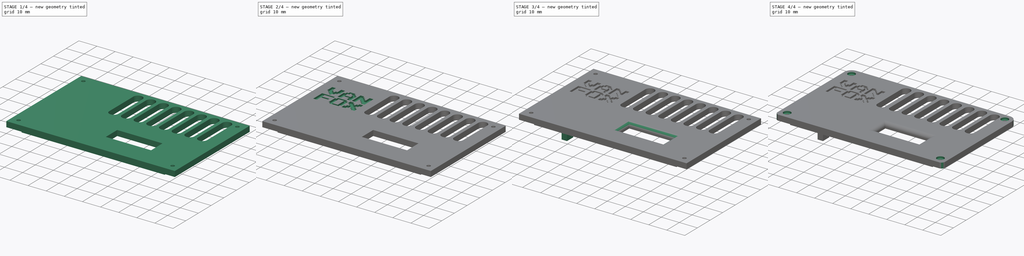
[diagram: build sequence overview — one tinted view per stage of 4, left to right]
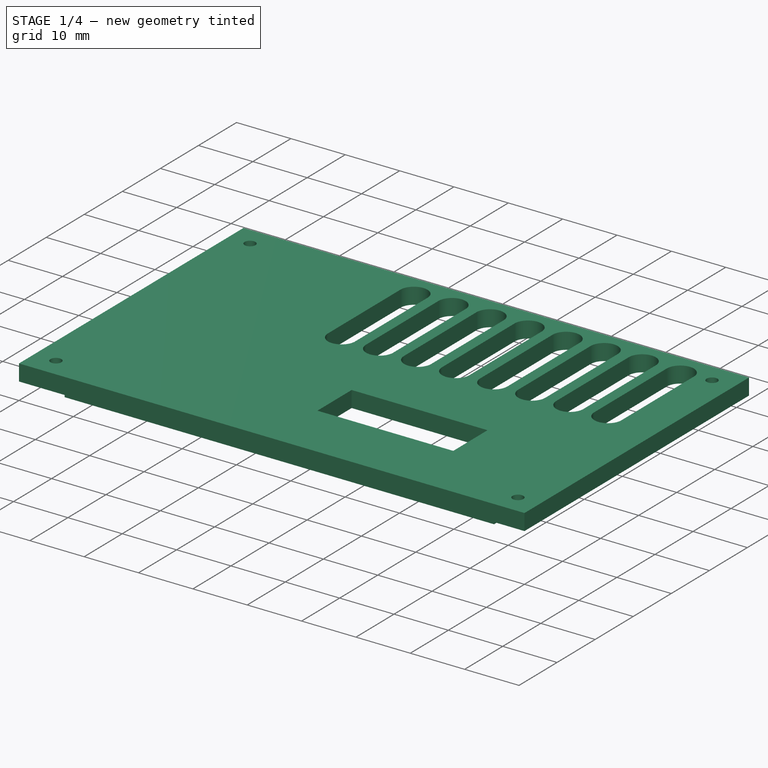
[diagram: stage 1 of 4 — iso view after this stage's code; geometry added in this stage tinted green]
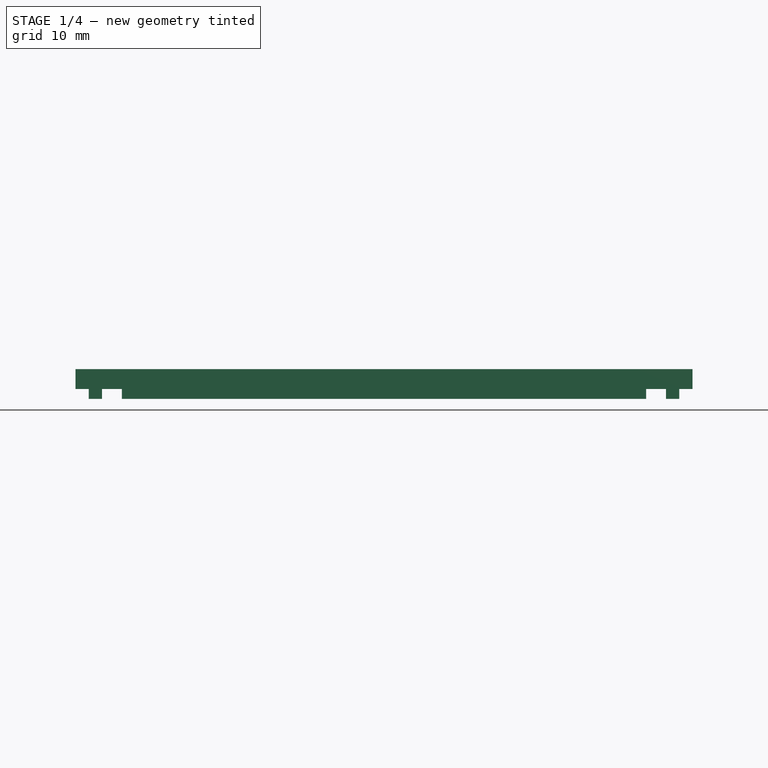
[diagram: stage 1 of 4 — front view after this stage's code; geometry added in this stage tinted green]
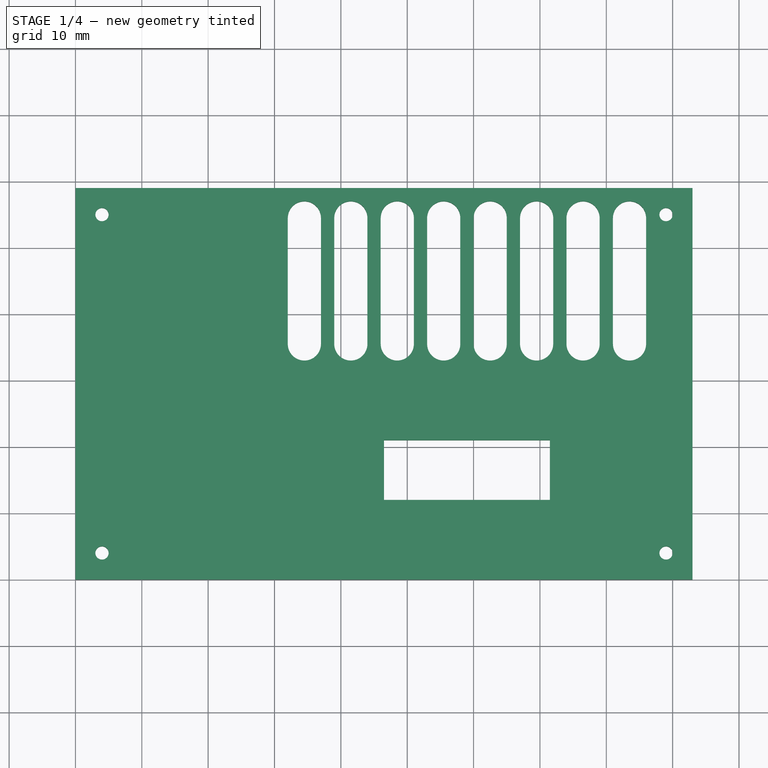
[diagram: stage 1 of 4 — top view after this stage's code; geometry added in this stage tinted green]
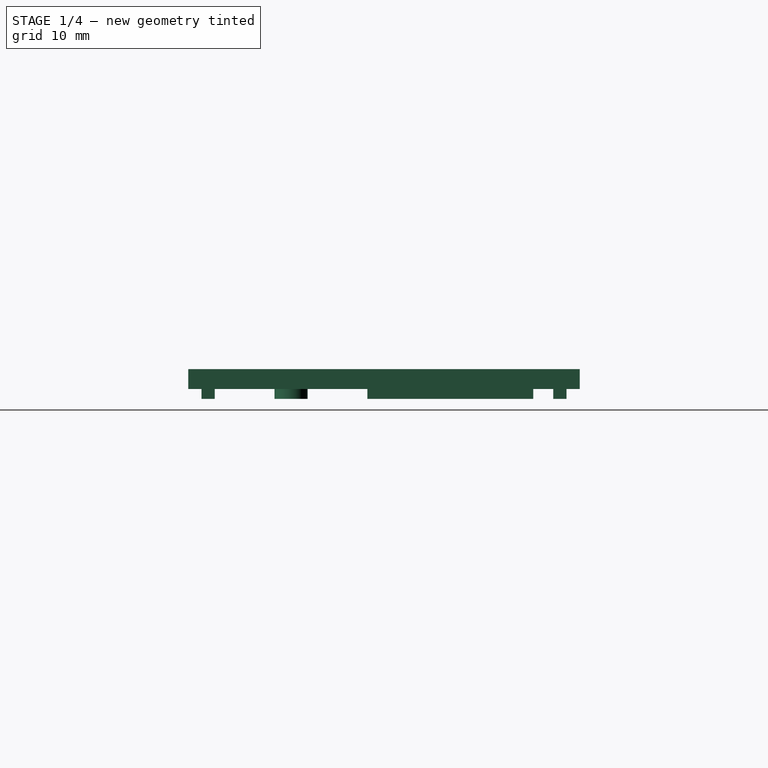
[diagram: stage 1 of 4 — right view after this stage's code; geometry added in this stage tinted green]
FCSTD DOCUMENT  (FreeCAD 1.0R39319 (Git))
Label: hatch_V1
License: All rights reserved
LicenseURL: https://en.wikipedia.org/wiki/All_rights_reserved
objects: Sketcher::SketchObject×6, PartDesign::Pocket×5, PartDesign::Pad×3, PartDesign::Fillet×3, Part::Part2DObjectPython×2, PartDesign::Body×1
note: 48 computed .brp shape members not serialized (recipe doc carries the construction recipe); baked Part::Feature solids carry a one-line shape summary decoded from their .brp

FEATURE [Sketcher::SketchObject] Sketch
  ArcFitTolerance = 1e-06
  AttachmentSupport = -> [XY_Plane]
  FullyConstrained = true
  MakeInternals = false
  MapMode = 5
  sketch-geometry (4):
    g0: LineSegment StartX=0 StartY=59 StartZ=0 EndX=0 EndY=0 EndZ=0
    g1: LineSegment StartX=0 StartY=0 StartZ=0 EndX=93 EndY=0 EndZ=0
    g2: LineSegment StartX=93 StartY=0 StartZ=0 EndX=93 EndY=59 EndZ=0
    g3: LineSegment StartX=93 StartY=59 StartZ=0 EndX=0 EndY=59 EndZ=0
  constraints (11):
    c: Coincident(g0,g1)
    c: Coincident(g1,g2)
    c: Coincident(g2,g3)
    c: Coincident(g3,g0)
    c: Vertical(g0)
    c: Vertical(g2)
    c: Horizontal(g1)
    c: Horizontal(g3)
    c: Distance(g0,g2) = 93
    c: Distance(g1,g3) = 59
    c: Coincident(g-1,g0)
FEATURE [PartDesign::Pad] Pad
  Direction = (0,0,1)
  Length = 3
  Length2 = 10
  Profile = -> Sketch
  ReferenceAxis = -> Sketch [N_Axis]
  Refine = true
  Suppressed = false
  Type = 0
FEATURE [Sketcher::SketchObject] Sketch001
  ArcFitTolerance = 1e-06
  AttachmentSupport = -> [Pad]
  ExternalGeometry = -> [Pad]
  FullyConstrained = true
  MakeInternals = false
  MapMode = 5
  Placement = pos=(0,0,3) rot=(0,0,1;0rad)
  sketch-geometry (40):
    g0: ArcOfCircle CenterX=83.5 CenterY=35.5 CenterZ=0 NormalX=0 NormalY=0 NormalZ=1 AngleXU=0 Radius=2.5 StartAngle=3.14159 EndAngle=6.28319
    g1: ArcOfCircle CenterX=83.5 CenterY=54.5 CenterZ=0 NormalX=0 NormalY=0 NormalZ=1 AngleXU=0 Radius=2.5 StartAngle=-4.4e-15 EndAngle=3.14159
    g2: LineSegment StartX=81 StartY=35.5 StartZ=0 EndX=81 EndY=54.5 EndZ=0
    g3: LineSegment StartX=86 StartY=35.5 StartZ=0 EndX=86 EndY=54.5 EndZ=0
    g4: ArcOfCircle CenterX=41.5 CenterY=35.5 CenterZ=0 NormalX=0 NormalY=0 NormalZ=1 AngleXU=0 Radius=2.5 StartAngle=3.14159 EndAngle=6.28319
    g5: ArcOfCircle CenterX=41.5 CenterY=54.5 CenterZ=0 NormalX=0 NormalY=0 NormalZ=1 AngleXU=0 Radius=2.5 StartAngle=7e-16 EndAngle=3.14159
    g6: LineSegment StartX=39 StartY=35.5 StartZ=0 EndX=39 EndY=54.5 EndZ=0
    g7: LineSegment StartX=44 StartY=35.5 StartZ=0 EndX=44 EndY=54.5 EndZ=0
    g8: ArcOfCircle CenterX=76.5 CenterY=35.5 CenterZ=0 NormalX=0 NormalY=0 NormalZ=1 AngleXU=0 Radius=2.5 StartAngle=3.14159 EndAngle=6.28319
    g9: ArcOfCircle CenterX=76.5 CenterY=54.5 CenterZ=0 NormalX=0 NormalY=0 NormalZ=1 AngleXU=0 Radius=2.5 StartAngle=7e-16 EndAngle=3.14159
    g10: LineSegment StartX=74 StartY=35.5 StartZ=0 EndX=74 EndY=54.5 EndZ=0
    g11: LineSegment StartX=79 StartY=35.5 StartZ=0 EndX=79 EndY=54.5 EndZ=0
    g12: ArcOfCircle CenterX=55.5 CenterY=35.5 CenterZ=0 NormalX=0 NormalY=0 NormalZ=1 AngleXU=0 Radius=2.5 StartAngle=3.14159 EndAngle=6.28319
    g13: ArcOfCircle CenterX=55.5 CenterY=54.5 CenterZ=0 NormalX=0 NormalY=0 NormalZ=1 AngleXU=0 Radius=2.5 StartAngle=1.4e-15 EndAngle=3.14159
    g14: LineSegment StartX=53 StartY=35.5 StartZ=0 EndX=53 EndY=54.5 EndZ=0
    g15: LineSegment StartX=58 StartY=35.5 StartZ=0 EndX=58 EndY=54.5 EndZ=0
    g16: ArcOfCircle CenterX=62.5 CenterY=35.5 CenterZ=0 NormalX=0 NormalY=0 NormalZ=1 AngleXU=0 Radius=2.5 StartAngle=3.14159 EndAngle=6.28319
    g17: ArcOfCircle CenterX=62.5 CenterY=54.5 CenterZ=0 NormalX=0 NormalY=0 NormalZ=1 AngleXU=0 Radius=2.5 StartAngle=8e-16 EndAngle=3.14159
    g18: LineSegment StartX=60 StartY=35.5 StartZ=0 EndX=60 EndY=54.5 EndZ=0
    g19: LineSegment StartX=65 StartY=35.5 StartZ=0 EndX=65 EndY=54.5 EndZ=0
    g20: ArcOfCircle CenterX=48.5 CenterY=35.5 CenterZ=0 NormalX=0 NormalY=0 NormalZ=1 AngleXU=0 Radius=2.5 StartAngle=3.14159 EndAngle=6.28319
    g21: ArcOfCircle CenterX=48.5 CenterY=54.5 CenterZ=0 NormalX=0 NormalY=0 NormalZ=1 AngleXU=0 Radius=2.5 StartAngle=-9e-16 EndAngle=3.14159
    g22: LineSegment StartX=46 StartY=35.5 StartZ=0 EndX=46 EndY=54.5 EndZ=0
    g23: LineSegment StartX=51 StartY=35.5 StartZ=0 EndX=51 EndY=54.5 EndZ=0
    g24: ArcOfCircle CenterX=34.5 CenterY=35.5 CenterZ=0 NormalX=0 NormalY=0 NormalZ=1 AngleXU=0 Radius=2.5 StartAngle=3.14159 EndAngle=6.28319
    g25: ArcOfCircle CenterX=34.5 CenterY=54.5 CenterZ=0 NormalX=0 NormalY=0 NormalZ=1 AngleXU=0 Radius=2.5 StartAngle=-9e-16 EndAngle=3.14159
    g26: LineSegment StartX=32 StartY=35.5 StartZ=0 EndX=32 EndY=54.5 EndZ=0
    g27: LineSegment StartX=37 StartY=35.5 StartZ=0 EndX=37 EndY=54.5 EndZ=0
    g28: ArcOfCircle CenterX=69.5 CenterY=35.5 CenterZ=0 NormalX=0 NormalY=0 NormalZ=1 AngleXU=0 Radius=2.5 StartAngle=3.14159 EndAngle=6.28319
    g29: ArcOfCircle CenterX=69.5 CenterY=54.5 CenterZ=0 NormalX=0 NormalY=0 NormalZ=1 AngleXU=0 Radius=2.5 StartAngle=6e-16 EndAngle=3.14159
    g30: LineSegment StartX=67 StartY=35.5 StartZ=0 EndX=67 EndY=54.5 EndZ=0
    g31: LineSegment StartX=72 StartY=35.5 StartZ=0 EndX=72 EndY=54.5 EndZ=0
    g32: LineSegment StartX=46.5 StartY=21 StartZ=0 EndX=46.5 EndY=12 EndZ=0
    g33: LineSegment StartX=46.5 StartY=12 StartZ=0 EndX=71.5 EndY=12 EndZ=0
    g34: LineSegment StartX=71.5 StartY=12 StartZ=0 EndX=71.5 EndY=21 EndZ=0
    g35: LineSegment StartX=71.5 StartY=21 StartZ=0 EndX=46.5 EndY=21 EndZ=0
    g36: Circle CenterX=4 CenterY=55 CenterZ=0 NormalX=0 NormalY=0 NormalZ=1 AngleXU=0 Radius=1
    g37: Circle CenterX=89 CenterY=55 CenterZ=0 NormalX=0 NormalY=0 NormalZ=1 AngleXU=0 Radius=1
    g38: Circle CenterX=89 CenterY=4 CenterZ=0 NormalX=0 NormalY=0 NormalZ=1 AngleXU=0 Radius=1
    g39: Circle CenterX=4 CenterY=4 CenterZ=0 NormalX=0 NormalY=0 NormalZ=1 AngleXU=0 Radius=1
  constraints (104):
    c: Tangent(g0,g2) = 1.5708
    c: Tangent(g0,g3) = -1.5708
    c: Tangent(g1,g2) = 1.5708
    c: Tangent(g1,g3) = -1.5708
    c: Equal(g0,g1)
    c: Vertical(g3)
    c: Distance(g0,g1) = 19
    c: Radius(g0) = 2.5
    c: Distance(g1,g-3) = 4.5
    c: Tangent(g4,g6) = 1.5708
    c: Tangent(g4,g7) = -1.5708
    c: Tangent(g5,g6) = 1.5708
    c: Tangent(g5,g7) = -1.5708
    c: Equal(g4,g5)
    c: Vertical(g7)
    c: Distance(g4,g5) = 19
    c: Radius(g4) = 2.5
    c: Tangent(g8,g10) = 1.5708
    c: Tangent(g8,g11) = -1.5708
    c: Tangent(g9,g10) = 1.5708
    c: Tangent(g9,g11) = -1.5708
    c: Equal(g8,g9)
    c: Vertical(g11)
    c: Distance(g8,g9) = 19
    c: Radius(g8) = 2.5
    c: Tangent(g12,g14) = 1.5708
    c: Tangent(g12,g15) = -1.5708
    c: Tangent(g13,g14) = 1.5708
    c: Tangent(g13,g15) = -1.5708
    c: Equal(g12,g13)
    c: Vertical(g15)
    c: Distance(g12,g13) = 19
    c: Radius(g12) = 2.5
    c: Tangent(g16,g18) = 1.5708
    c: Tangent(g16,g19) = -1.5708
    c: Tangent(g17,g18) = 1.5708
    c: Tangent(g17,g19) = -1.5708
    c: Equal(g16,g17)
    c: Vertical(g19)
    c: Distance(g16,g17) = 19
    c: Radius(g16) = 2.5
    c: Tangent(g20,g22) = 1.5708
    c: Tangent(g20,g23) = -1.5708
    c: Tangent(g21,g22) = 1.5708
    c: Tangent(g21,g23) = -1.5708
    c: Equal(g20,g21)
    c: Vertical(g23)
    c: Distance(g20,g21) = 19
    c: Radius(g20) = 2.5
    c: Tangent(g24,g26) = 1.5708
    c: Tangent(g24,g27) = -1.5708
    c: Tangent(g25,g26) = 1.5708
    c: Tangent(g25,g27) = -1.5708
    c: Equal(g24,g25)
    c: Vertical(g27)
    c: Distance(g24,g25) = 19
    c: Radius(g24) = 2.5
    c: Tangent(g28,g30) = 1.5708
    c: Tangent(g28,g31) = -1.5708
    c: Tangent(g29,g30) = 1.5708
    c: Tangent(g29,g31) = -1.5708
    c: Equal(g28,g29)
    c: Vertical(g31)
    c: Distance(g28,g29) = 19
    c: Radius(g28) = 2.5
    c: Distance(g9,g-3) = 4.5
    c: Distance(g29,g-3) = 4.5
    c: Distance(g17,g-3) = 4.5
    c: Distance(g13,g-3) = 4.5
    c: Distance(g21,g-3) = 4.5
    c: Distance(g5,g-3) = 4.5
    c: Distance(g25,g-3) = 4.5
    c: DistanceX(g9,g1) = 7
    c: DistanceX(g29,g9) = 7
    c: DistanceX(g17,g29) = 7
    c: DistanceX(g13,g17) = 7
    c: DistanceX(g21,g13) = 7
    c: DistanceX(g5,g21) = 7
    c: DistanceX(g25,g5) = 7
    c: Distance(g1,g-4) = 9.5
    c: Coincident(g32,g33)
    c: Coincident(g33,g34)
    c: Coincident(g34,g35)
    c: Coincident(g35,g32)
    c: Vertical(g32)
    c: Vertical(g34)
    c: Horizontal(g33)
    c: Horizontal(g35)
    c: Distance(g32,g34) = 25
    c: Distance(g33,g35) = 9
    c: Diameter(g36) = 2
    c: Diameter(g37) = 2
    c: Diameter(g38) = 2
    c: Diameter(g39) = 2
    c: Distance(g36,g-2) = 4
    c: Distance(g36,g-3) = 4
    c: DistanceX(g-1,g39) = 4
    c: Distance(g39,g-1) = 4
    c: Distance(g38,g-4) = 4
    c: Distance(g38,g-1) = 4
    c: Distance(g37,g-3) = 4
    c: Distance(g37,g-4) = 4
    c: Distance(g-1,g33) = 12
    c: Distance(g-4,g34) = 21.5
FEATURE [PartDesign::Pocket] Pocket
  BaseFeature = -> Pad
  Direction = (0,0,-1)
  Length = 3
  Length2 = 5
  Profile = -> Sketch001
  ReferenceAxis = -> Sketch001 [N_Axis]
  Refine = true
  Suppressed = false
  Type = 0
FEATURE [Sketcher::SketchObject] Sketch002
  ArcFitTolerance = 1e-06
  AttachmentSupport = -> [Pocket]
  ExternalGeometry = -> [Pocket]
  FullyConstrained = true
  MakeInternals = false
  MapMode = 5
  Placement = pos=(0,0,0) rot=(1,0,0;3.14159rad)
  sketch-geometry (18):
    g0: Circle CenterX=38.5 CenterY=-15.5 CenterZ=0 NormalX=0 NormalY=0 NormalZ=1 AngleXU=0 Radius=2.5
    g1: Circle CenterX=81.5 CenterY=-15.5 CenterZ=0 NormalX=0 NormalY=0 NormalZ=1 AngleXU=0 Radius=2.5
    g2: LineSegment StartX=7 StartY=-2 StartZ=0 EndX=7 EndY=-4 EndZ=0
    g3: LineSegment StartX=7 StartY=-4 StartZ=0 EndX=86 EndY=-4 EndZ=0
    g4: LineSegment StartX=86 StartY=-4 StartZ=0 EndX=86 EndY=-2 EndZ=0
    g5: LineSegment StartX=86 StartY=-2 StartZ=0 EndX=7 EndY=-2 EndZ=0
    g6: LineSegment StartX=7 StartY=-55 StartZ=0 EndX=7 EndY=-57 EndZ=0
    g7: LineSegment StartX=7 StartY=-57 StartZ=0 EndX=30 EndY=-57 EndZ=0
    g8: LineSegment StartX=30 StartY=-57 StartZ=0 EndX=30 EndY=-55 EndZ=0
    g9: LineSegment StartX=30 StartY=-55 StartZ=0 EndX=7 EndY=-55 EndZ=0
    g10: LineSegment StartX=89 StartY=-27 StartZ=0 EndX=89 EndY=-52 EndZ=0
    g11: LineSegment StartX=89 StartY=-52 StartZ=0 EndX=91 EndY=-52 EndZ=0
    g12: LineSegment StartX=91 StartY=-52 StartZ=0 EndX=91 EndY=-27 EndZ=0
    g13: LineSegment StartX=91 StartY=-27 StartZ=0 EndX=89 EndY=-27 EndZ=0
    g14: LineSegment StartX=2 StartY=-27 StartZ=0 EndX=2 EndY=-52 EndZ=0
    g15: LineSegment StartX=2 StartY=-52 StartZ=0 EndX=4 EndY=-52 EndZ=0
    g16: LineSegment StartX=4 StartY=-52 StartZ=0 EndX=4 EndY=-27 EndZ=0
    g17: LineSegment StartX=4 StartY=-27 StartZ=0 EndX=2 EndY=-27 EndZ=0
  constraints (54):
    c: Diameter(g0) = 5
    c: Diameter(g1) = 5
    c: Distance(g0,g-5) = 8
    c: Distance(g1,g-4) = 10
    c: Distance(g0,g-6) = 5.5
    c: Distance(g1,g-6) = 5.5
    c: Coincident(g2,g3)
    c: Coincident(g3,g4)
    c: Coincident(g4,g5)
    c: Coincident(g5,g2)
    c: Vertical(g2)
    c: Vertical(g4)
    c: Horizontal(g3)
    c: Horizontal(g5)
    c: Distance(g2,g4) = 79
    c: Distance(g3,g5) = 2
    c: Coincident(g6,g7)
    c: Coincident(g7,g8)
    c: Coincident(g8,g9)
    c: Coincident(g9,g6)
    c: Vertical(g6)
    c: Vertical(g8)
    c: Horizontal(g7)
    c: Horizontal(g9)
    c: Distance(g5,g-7) = 2
    c: Distance(g-2,g2) = 7
    c: Coincident(g10,g11)
    c: Coincident(g11,g12)
    c: Coincident(g12,g13)
    c: Coincident(g13,g10)
    c: Vertical(g10)
    c: Vertical(g12)
    c: Horizontal(g11)
    c: Horizontal(g13)
    c: Distance(g10,g12) = 2
    c: Distance(g11,g13) = 25
    c: Coincident(g14,g15)
    c: Coincident(g15,g16)
    c: Coincident(g16,g17)
    c: Coincident(g17,g14)
    c: Vertical(g14)
    c: Vertical(g16)
    c: Horizontal(g15)
    c: Horizontal(g17)
    c: Distance(g14,g16) = 2
    c: Distance(g15,g17) = 25
    c: Distance(g-2,g14) = 2
    c: Distance(g-8,g12) = 2
    c: Distance(g-2,g6) = 7
    c: Distance(g7,g9) = 2
    c: Distance(g-9,g7) = 2
    c: Distance(g6,g8) = 23
    c: Distance(g-9,g15) = 7
    c: Distance(g-9,g11) = 7
FEATURE [PartDesign::Pad] Pad001
  BaseFeature = -> Pocket
  Direction = (0,0,-1)
  Length = 1.5
  Length2 = 10
  Profile = -> Sketch002
  ReferenceAxis = -> Sketch002 [N_Axis]
  Refine = true
  Suppressed = false
  Type = 0
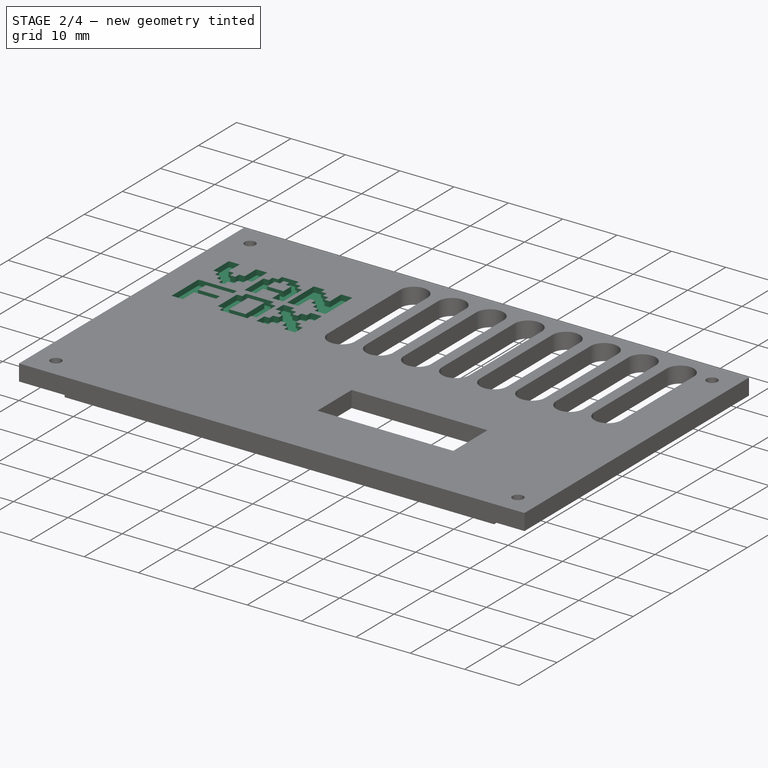
[diagram: stage 2 of 4 — iso view after this stage's code; geometry added in this stage tinted green]
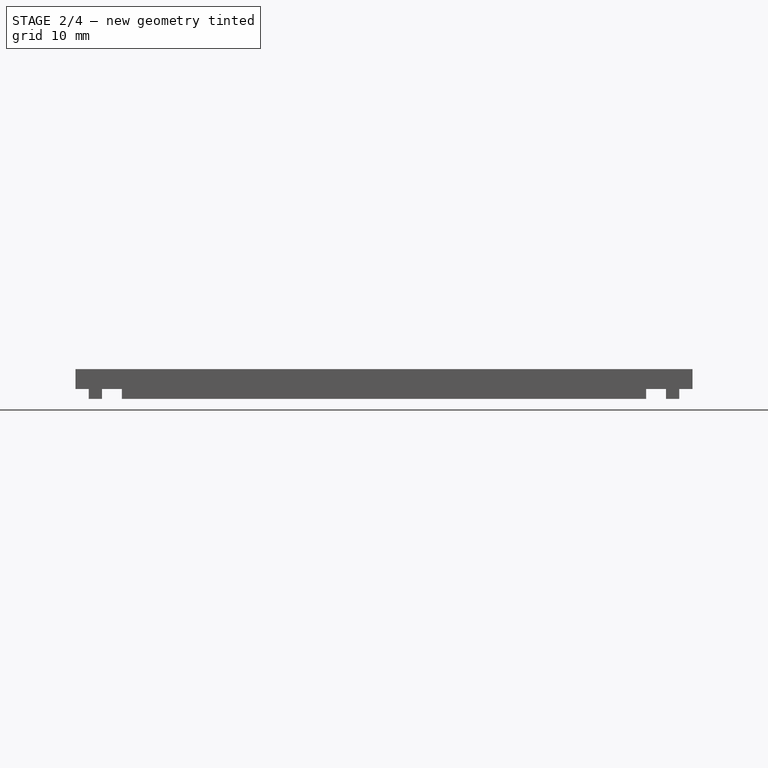
[diagram: stage 2 of 4 — front view after this stage's code; geometry added in this stage tinted green]
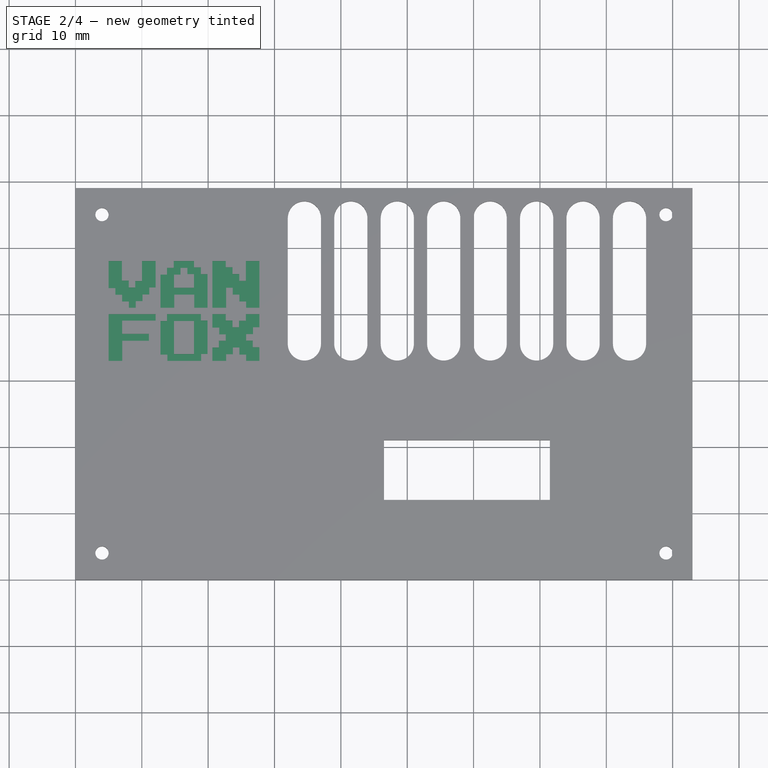
[diagram: stage 2 of 4 — top view after this stage's code; geometry added in this stage tinted green]
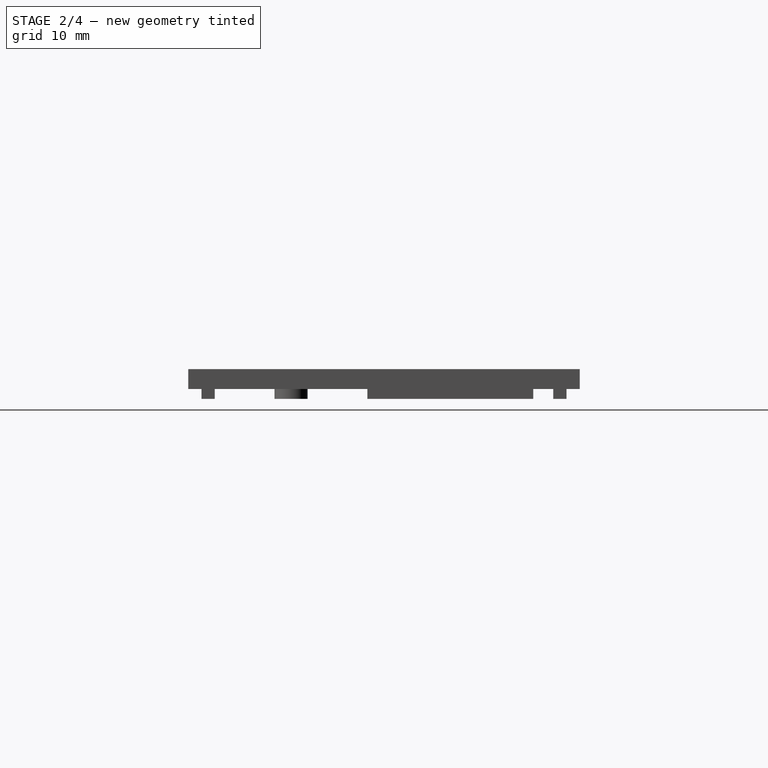
[diagram: stage 2 of 4 — right view after this stage's code; geometry added in this stage tinted green]
FEATURE [Sketcher::SketchObject] Sketch003
  ArcFitTolerance = 1e-06
  AttachmentSupport = -> [Pad001]
  ExternalGeometry = -> [Pad001]
  FullyConstrained = true
  MakeInternals = false
  MapMode = 5
  Placement = pos=(0,0,-1.5) rot=(1,0,0;3.14159rad)
  sketch-geometry (2):
    g0: Circle CenterX=38.5 CenterY=-15.5 CenterZ=0 NormalX=0 NormalY=0 NormalZ=1 AngleXU=0 Radius=1
    g1: Circle CenterX=81.5 CenterY=-15.5 CenterZ=0 NormalX=0 NormalY=0 NormalZ=1 AngleXU=0 Radius=1
  constraints (4):
    c: Diameter(g0) = 2
    c: Diameter(g1) = 2
    c: Coincident(g0,g-3)
    c: Coincident(g1,g-4)
FEATURE [PartDesign::Pocket] Pocket001
  BaseFeature = -> Pad001
  Direction = (0,0,1)
  Length = 3
  Length2 = 5
  Profile = -> Sketch003
  ReferenceAxis = -> Sketch003 [N_Axis]
  Refine = true
  Suppressed = false
  Type = 0
FEATURE [Part::Part2DObjectPython] ShapeString  # Draft 2D object (typed FeaturePython)
  FontFile = /Library/Fonts/ARCADECLASSIC.TTF
  Fuse = false
  Justification = 6
  JustificationReference = 0
  KeepLeftMargin = false
  MakeFace = true
  ObliqueAngle = 0
  Placement = pos=(5,40,3) rot=(0,0,1;0rad)
  ScaleToSize = true
  Size = 8
  String = VAN
  Tracking = 0
FEATURE [Part::Part2DObjectPython] ShapeString001  # Draft 2D object (typed FeaturePython)
  FontFile = /Library/Fonts/ARCADECLASSIC.TTF
  Fuse = false
  Justification = 6
  JustificationReference = 0
  KeepLeftMargin = false
  MakeFace = true
  ObliqueAngle = 0
  Placement = pos=(5,32,3) rot=(0,0,1;0rad)
  ScaleToSize = true
  Size = 8
  String = fox
  Tracking = 0
FEATURE [PartDesign::Pocket] Pocket002
  BaseFeature = -> Pocket001
  Direction = (0,0,-1)
  Length = 1
  Length2 = 5
  Profile = -> ShapeString
  ReferenceAxis = -> ShapeString [N_Axis]
  Refine = true
  Suppressed = false
  Type = 0
FEATURE [PartDesign::Pocket] Pocket003
  BaseFeature = -> Pocket002
  Direction = (0,0,-1)
  Length = 1
  Length2 = 5
  Profile = -> ShapeString001
  ReferenceAxis = -> ShapeString001 [N_Axis]
  Refine = true
  Suppressed = false
  Type = 0
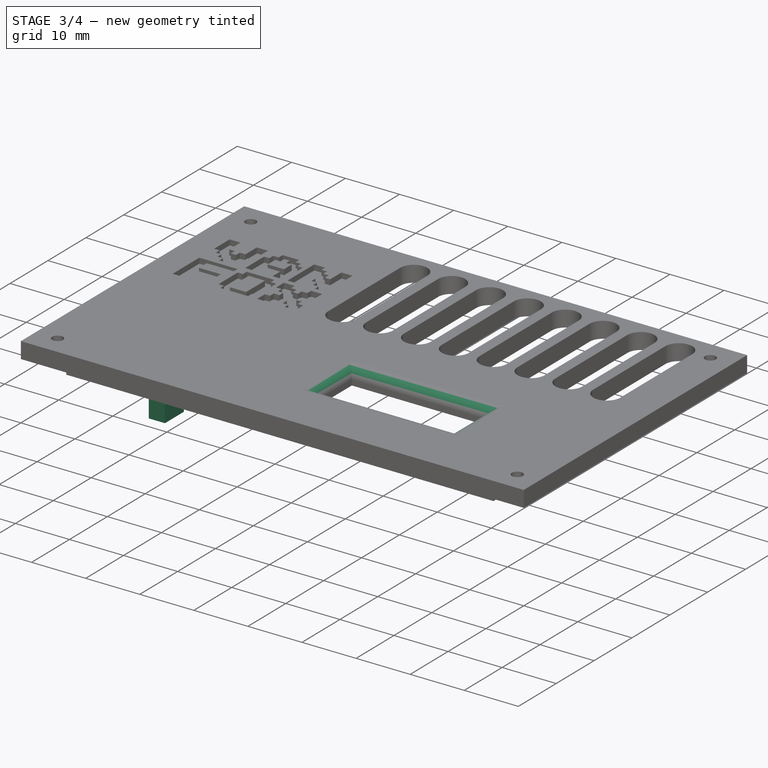
[diagram: stage 3 of 4 — iso view after this stage's code; geometry added in this stage tinted green]
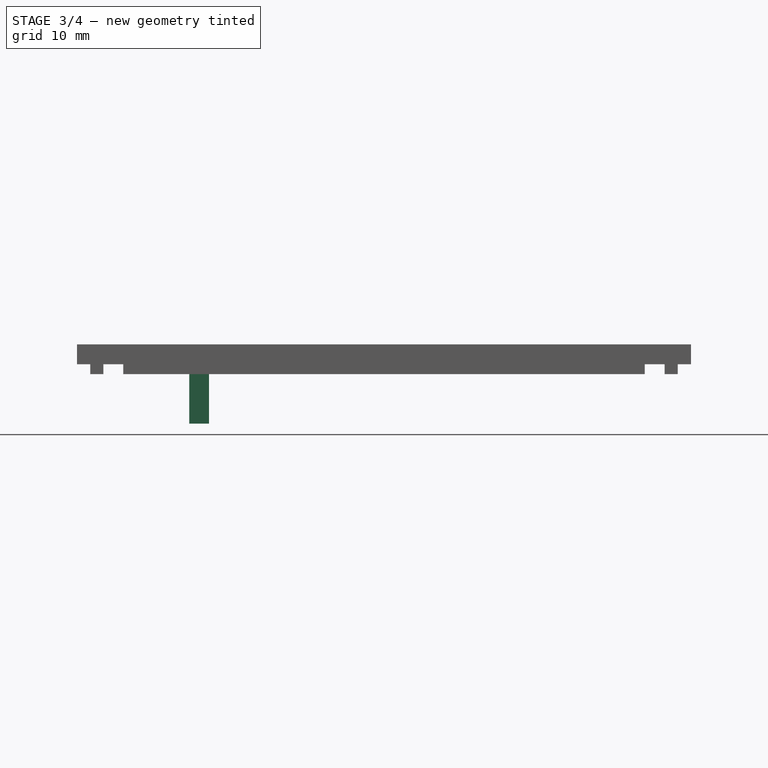
[diagram: stage 3 of 4 — front view after this stage's code; geometry added in this stage tinted green]
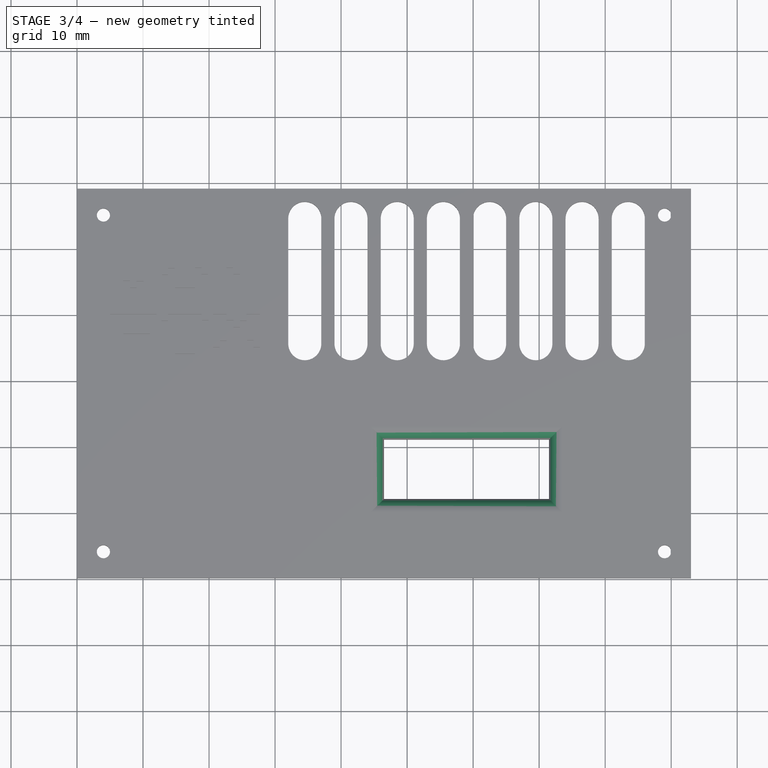
[diagram: stage 3 of 4 — top view after this stage's code; geometry added in this stage tinted green]
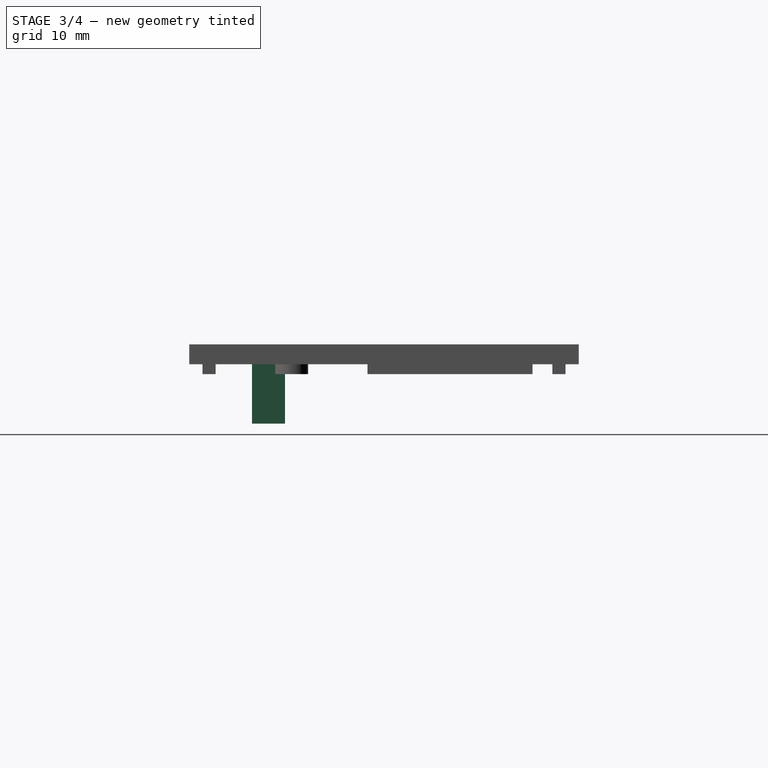
[diagram: stage 3 of 4 — right view after this stage's code; geometry added in this stage tinted green]
FEATURE [Sketcher::SketchObject] Sketch004
  ArcFitTolerance = 1e-06
  AttachmentSupport = -> [Pocket003]
  FullyConstrained = true
  MakeInternals = false
  MapMode = 5
  Placement = pos=(0,0,0) rot=(1,0,0;3.14159rad)
  sketch-geometry (4):
    g0: LineSegment StartX=20 StartY=-9.5 StartZ=0 EndX=17 EndY=-9.5 EndZ=0
    g1: LineSegment StartX=17 StartY=-9.5 StartZ=0 EndX=17 EndY=-14.5 EndZ=0
    g2: LineSegment StartX=17 StartY=-14.5 StartZ=0 EndX=20 EndY=-14.5 EndZ=0
    g3: LineSegment StartX=20 StartY=-14.5 StartZ=0 EndX=20 EndY=-9.5 EndZ=0
  constraints (12):
    c: Coincident(g0,g1)
    c: Coincident(g1,g2)
    c: Coincident(g2,g3)
    c: Coincident(g3,g0)
    c: Horizontal(g0)
    c: Horizontal(g2)
    c: Vertical(g1)
    c: Vertical(g3)
    c: Distance(g1,g3) = 3
    c: Distance(g0,g2) = 5
    c: Distance(g-2,g3) = 20
    c: Distance(g-1,g0) = 9.5
FEATURE [PartDesign::Pad] Pad002
  BaseFeature = -> Pocket003
  Direction = (0,0,-1)
  Length = 9
  Length2 = 10
  Profile = -> Sketch004
  ReferenceAxis = -> Sketch004 [N_Axis]
  Refine = true
  Suppressed = false
  Type = 0
FEATURE [PartDesign::Fillet] Fillet
  Base = -> Pad002 [Edge78,Edge77,Edge80,Edge79]
  BaseFeature = -> Pad002
  Radius = 2
  Refine = true
  SupportTransform = false
  Suppressed = false
  UseAllEdges = false
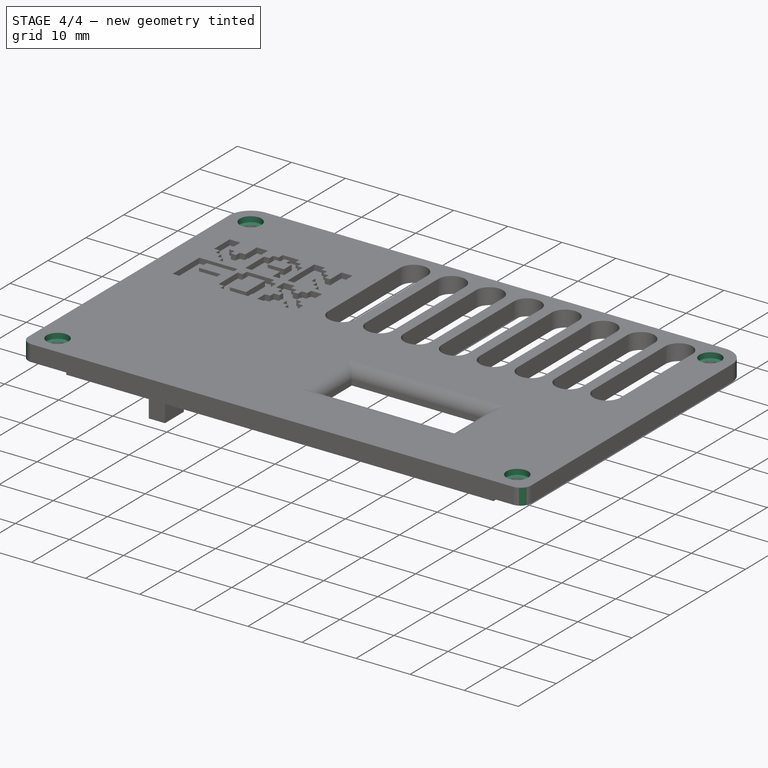
[diagram: stage 4 of 4 — iso view after this stage's code; geometry added in this stage tinted green]
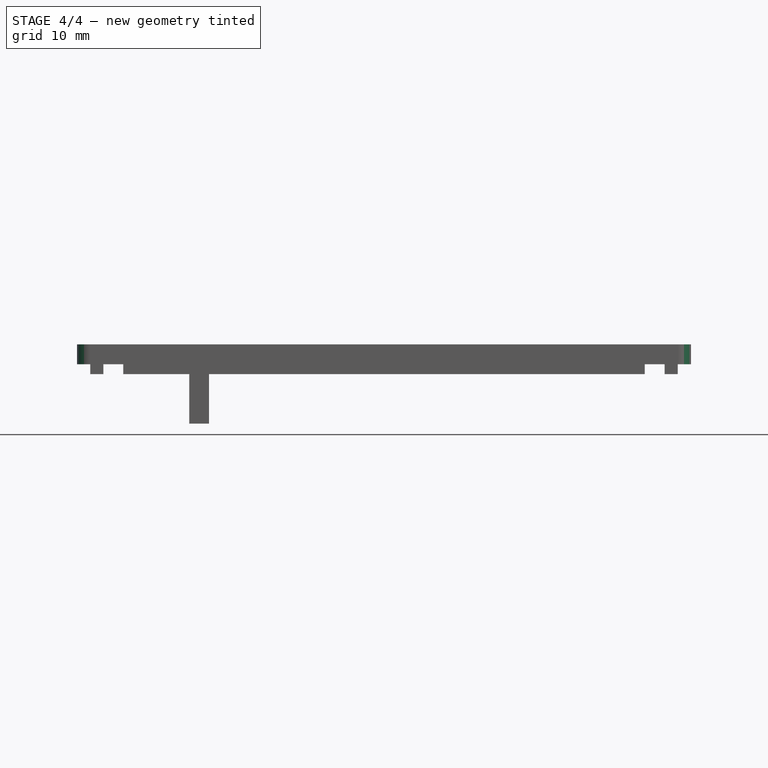
[diagram: stage 4 of 4 — front view after this stage's code; geometry added in this stage tinted green]
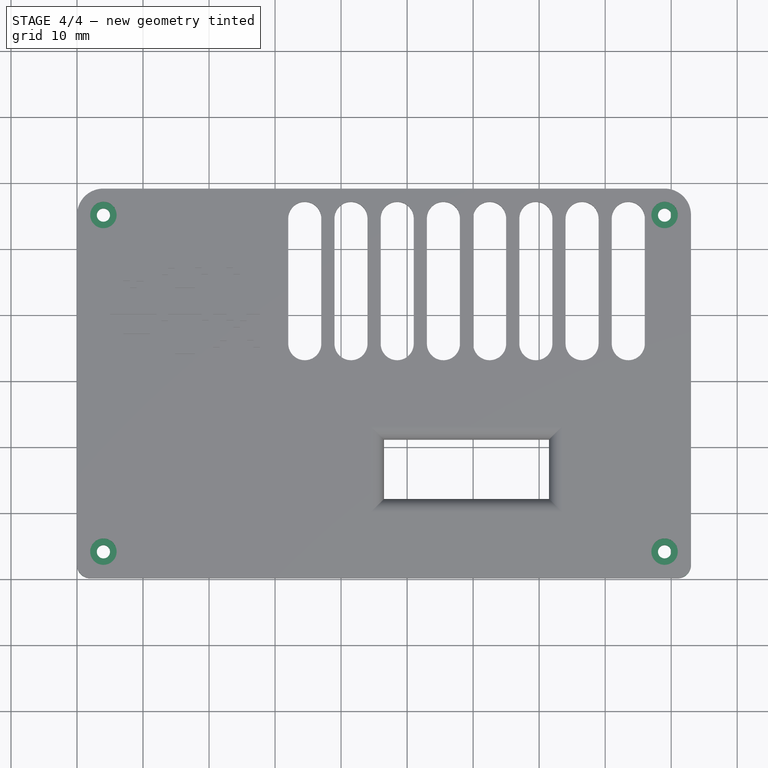
[diagram: stage 4 of 4 — top view after this stage's code; geometry added in this stage tinted green]
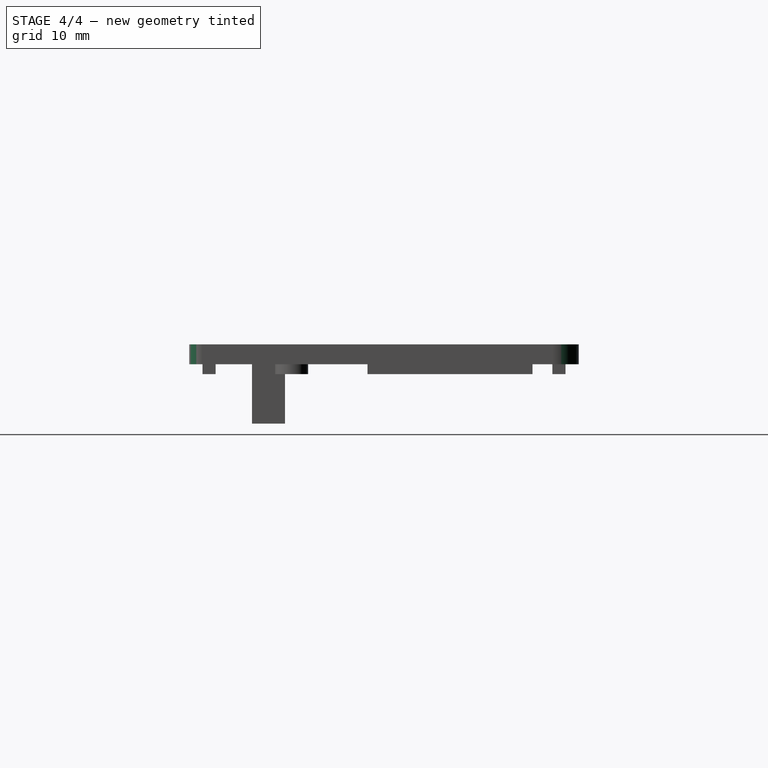
[diagram: stage 4 of 4 — right view after this stage's code; geometry added in this stage tinted green]
FEATURE [PartDesign::Fillet] Fillet001
  Base = -> Fillet [Edge176,Edge172]
  BaseFeature = -> Fillet
  Radius = 2
  Refine = true
  SupportTransform = false
  Suppressed = false
  UseAllEdges = false
FEATURE [PartDesign::Fillet] Fillet002
  Base = -> Fillet001 [Edge167,Edge170]
  BaseFeature = -> Fillet001
  Radius = 4
  Refine = true
  SupportTransform = false
  Suppressed = false
  UseAllEdges = false
FEATURE [Sketcher::SketchObject] Sketch005
  ArcFitTolerance = 1e-06
  AttachmentSupport = -> [Fillet002]
  ExternalGeometry = -> [Fillet002]
  FullyConstrained = true
  MakeInternals = false
  MapMode = 5
  Placement = pos=(0,0,3) rot=(0,0,1;0rad)
  sketch-geometry (4):
    g0: Circle CenterX=4 CenterY=55 CenterZ=0 NormalX=0 NormalY=0 NormalZ=1 AngleXU=0 Radius=2
    g1: Circle CenterX=89 CenterY=55 CenterZ=0 NormalX=0 NormalY=0 NormalZ=1 AngleXU=0 Radius=2
    g2: Circle CenterX=89 CenterY=4 CenterZ=0 NormalX=0 NormalY=0 NormalZ=1 AngleXU=0 Radius=2
    g3: Circle CenterX=4 CenterY=4 CenterZ=0 NormalX=0 NormalY=0 NormalZ=1 AngleXU=0 Radius=2
  constraints (8):
    c: Diameter(g0) = 4
    c: Diameter(g1) = 4
    c: Diameter(g2) = 4
    c: Diameter(g3) = 4
    c: Coincident(g0,g-3)
    c: Coincident(g-4,g1)
    c: Coincident(g2,g-6)
    c: Coincident(g3,g-7)
FEATURE [PartDesign::Pocket] Pocket004
  BaseFeature = -> Fillet002
  Direction = (0,0,-1)
  Length = 1
  Length2 = 5
  Profile = -> Sketch005
  ReferenceAxis = -> Sketch005 [N_Axis]
  Refine = true
  Suppressed = false
  Type = 0
FEATURE [PartDesign::Body] Body
  AllowCompound = false
  Group = -> [Sketch,Pad,Sketch001,Pocket,Sketch002,Pad001,Sketch003,Pocket001,ShapeString,ShapeString001,Pocket002,Pocket003,Sketch004,Pad002,Fillet,Fillet001,Fillet002,Sketch005,Pocket004]
  Origin = -> Origin
  Tip = -> Pocket004
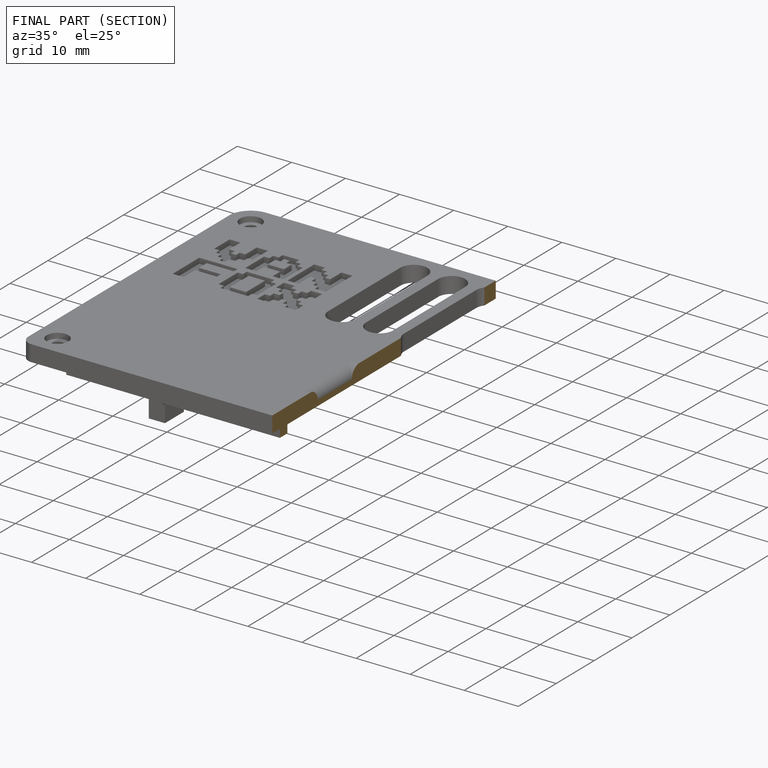
[diagram: finished part — half-section view (interior)]
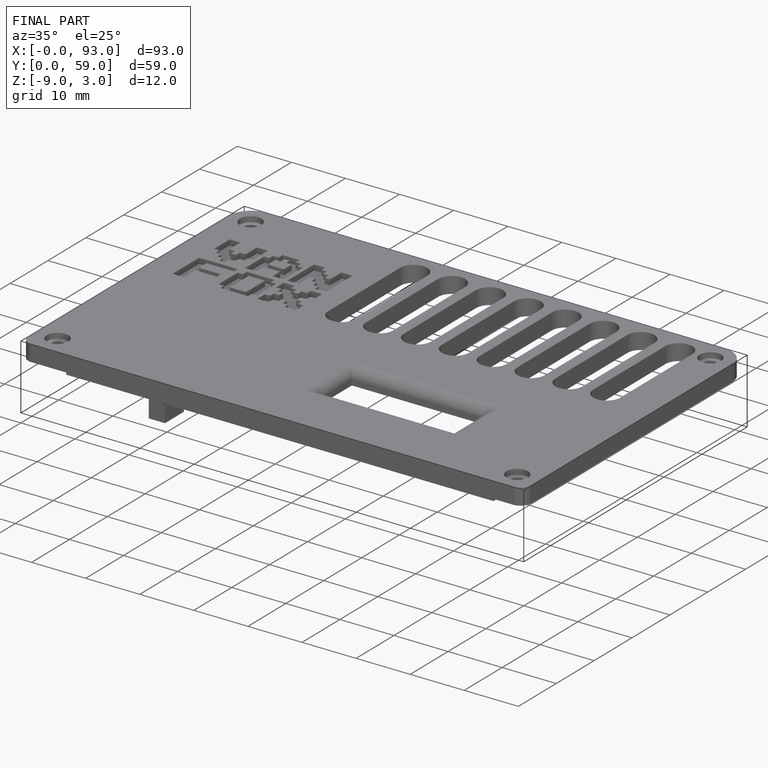
[diagram: finished part — iso view with bounding-box wireframe]
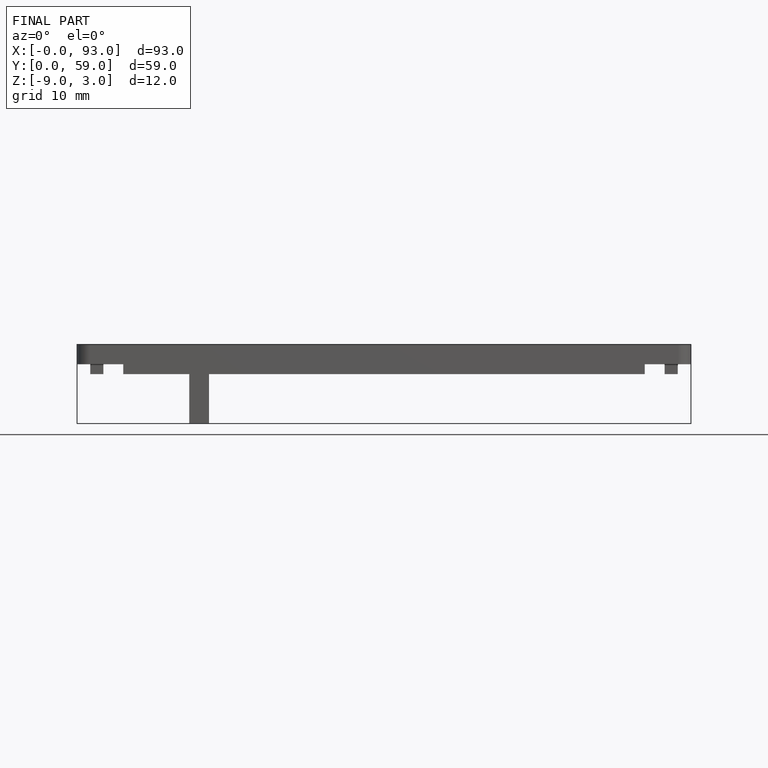
[diagram: finished part — front view with bounding-box wireframe]
